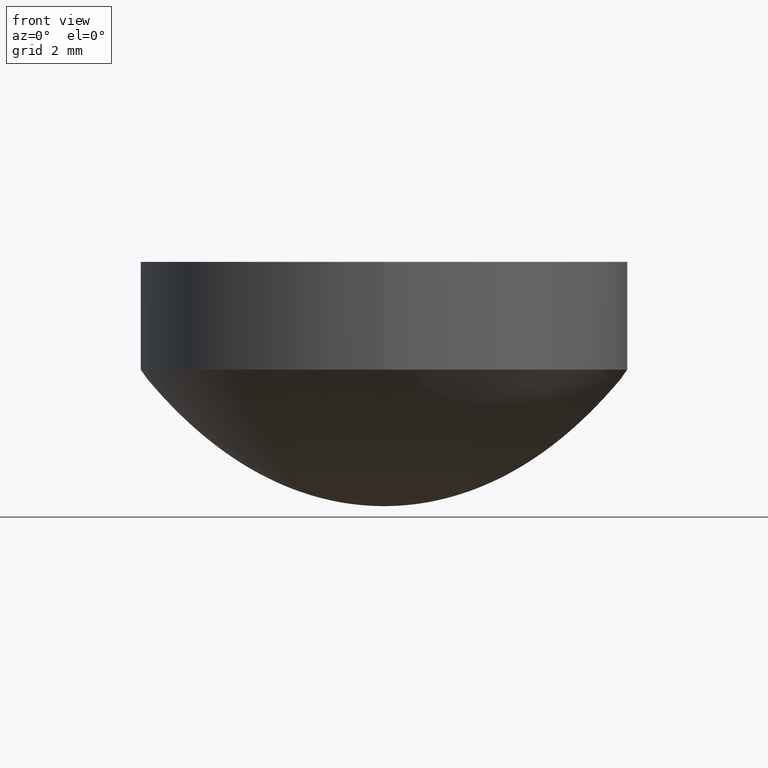
[diagram: clean part render]
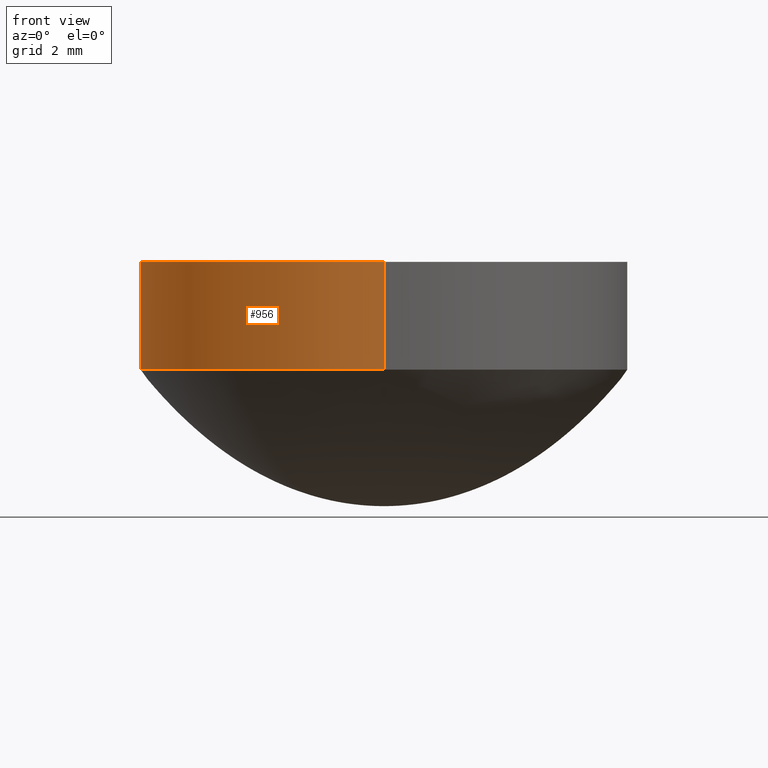
[diagram: same view with one face highlighted and labeled with its STEP entity id]
A machine part, front view. The second image highlights one B-rep face of the part: STEP entity #956.
In plain terms, the highlighted cylindrical surface (partial cylindrical patch) has radius 5 mm, axis along (0, 0, -1).
Its self-contained STEP definition (entity closure, byte-faithful):
#21 = AXIS2_PLACEMENT_3D ( 'NONE', #826, #146, #896 ) ;
#54 = VECTOR ( 'NONE', #837, 1000.000000000000000 ) ;
#85 = ORIENTED_EDGE ( 'NONE', *, *, #793, .T. ) ;
#136 = VECTOR ( 'NONE', #959, 1000.000000000000000 ) ;
#137 = EDGE_CURVE ( 'NONE', #165, #237, #817, .T. ) ;
#146 = DIRECTION ( 'NONE',  ( 0.000000000000000000, 0.000000000000000000, -1.000000000000000000 ) ) ;
#165 = VERTEX_POINT ( 'NONE', #199 ) ;
#192 = CARTESIAN_POINT ( 'NONE',  ( 0.000000000000000000, 0.000000000000000000, 5.000000000000000000 ) ) ;
#199 = CARTESIAN_POINT ( 'NONE',  ( 0.000000000000000000, 5.000000000000000000, 5.000000000000000000 ) ) ;
#215 = FACE_OUTER_BOUND ( 'NONE', #1074, .T. ) ;
#232 = ORIENTED_EDGE ( 'NONE', *, *, #137, .T. ) ;
#237 = VERTEX_POINT ( 'NONE', #381 ) ;
#381 = CARTESIAN_POINT ( 'NONE',  ( 0.000000000000000000, 5.000000000000000000, 2.793147640223440309 ) ) ;
#399 = CARTESIAN_POINT ( 'NONE',  ( 6.123233995736766282E-16, -5.000000000000000000, 5.000000000000000000 ) ) ;
#422 = ORIENTED_EDGE ( 'NONE', *, *, #595, .F. ) ;
#433 = CARTESIAN_POINT ( 'NONE',  ( 6.123233995736766282E-16, -5.000000000000000000, 5.250000000000000000 ) ) ;
#439 = DIRECTION ( 'NONE',  ( 0.000000000000000000, 1.000000000000000000, 0.000000000000000000 ) ) ;
#446 = DIRECTION ( 'NONE',  ( 0.000000000000000000, 0.000000000000000000, -1.000000000000000000 ) ) ;
#559 = CYLINDRICAL_SURFACE ( 'NONE', #21, 5.000000000000000000 ) ;
#572 = AXIS2_PLACEMENT_3D ( 'NONE', #192, #446, #439 ) ;
#595 = EDGE_CURVE ( 'NONE', #1084, #763, #855, .T. ) ;
#643 = DIRECTION ( 'NONE',  ( 0.000000000000000000, 0.000000000000000000, 1.000000000000000000 ) ) ;
#698 = CARTESIAN_POINT ( 'NONE',  ( 6.123233995736766282E-16, -5.000000000000000000, 2.793147640223440309 ) ) ;
#703 = CIRCLE ( 'NONE', #736, 5.000000000000000000 ) ;
#736 = AXIS2_PLACEMENT_3D ( 'NONE', #1046, #643, #803 ) ;
#763 = VERTEX_POINT ( 'NONE', #698 ) ;
#793 = EDGE_CURVE ( 'NONE', #1084, #165, #898, .T. ) ;
#803 = DIRECTION ( 'NONE',  ( 0.000000000000000000, 1.000000000000000000, 0.000000000000000000 ) ) ;
#817 = LINE ( 'NONE', #893, #136 ) ;
#826 = CARTESIAN_POINT ( 'NONE',  ( 0.000000000000000000, 0.000000000000000000, 5.250000000000000000 ) ) ;
#837 = DIRECTION ( 'NONE',  ( 0.000000000000000000, 0.000000000000000000, -1.000000000000000000 ) ) ;
#855 = LINE ( 'NONE', #433, #54 ) ;
#893 = CARTESIAN_POINT ( 'NONE',  ( 0.000000000000000000, 5.000000000000000000, 5.250000000000000000 ) ) ;
#896 = DIRECTION ( 'NONE',  ( 0.000000000000000000, 1.000000000000000000, 0.000000000000000000 ) ) ;
#898 = CIRCLE ( 'NONE', #572, 5.000000000000000000 ) ;
#956 = ADVANCED_FACE ( 'NONE', ( #215 ), #559, .T. ) ;
#959 = DIRECTION ( 'NONE',  ( 0.000000000000000000, 0.000000000000000000, -1.000000000000000000 ) ) ;
#1003 = ORIENTED_EDGE ( 'NONE', *, *, #1031, .T. ) ;
#1031 = EDGE_CURVE ( 'NONE', #237, #763, #703, .T. ) ;
#1046 = CARTESIAN_POINT ( 'NONE',  ( 0.000000000000000000, 0.000000000000000000, 2.793147640223440309 ) ) ;
#1074 = EDGE_LOOP ( 'NONE', ( #422, #85, #232, #1003 ) ) ;
#1084 = VERTEX_POINT ( 'NONE', #399 ) ;